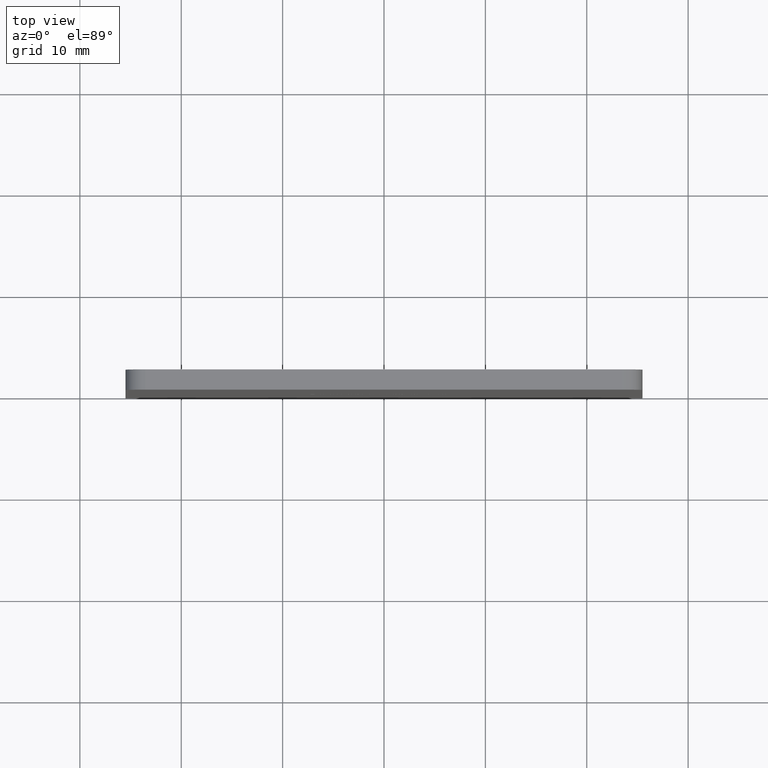
[diagram: clean part render]
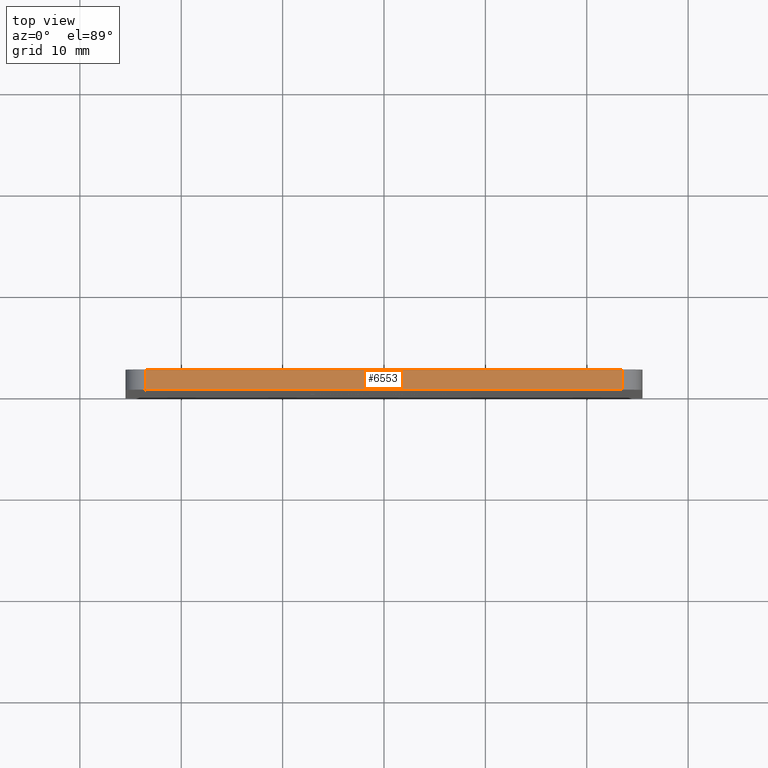
[diagram: same view with one face highlighted and labeled with its STEP entity id]
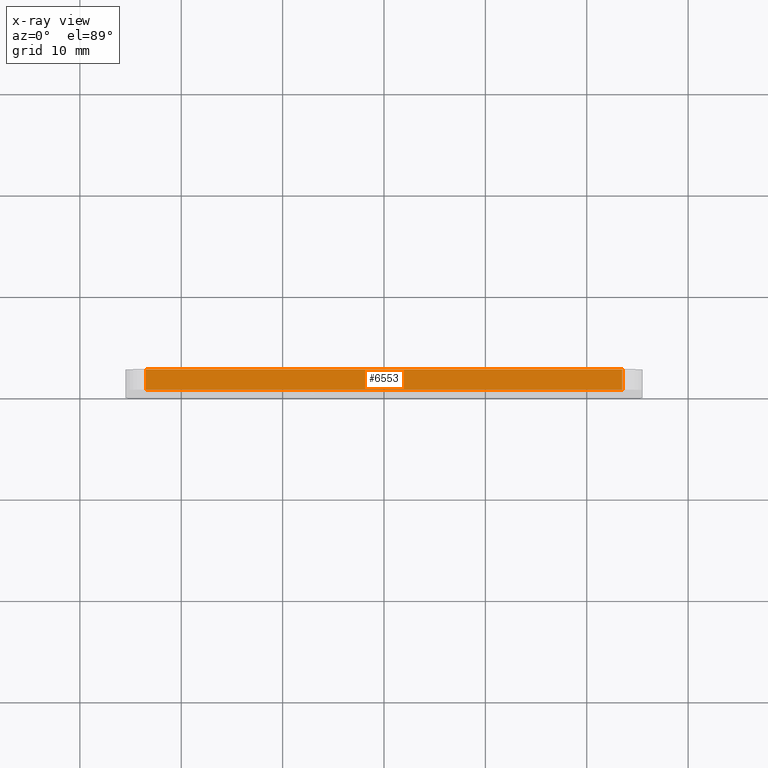
[diagram: x-ray of the same camera — body ghosted, the highlighted face saturated]
A machine part, top view. The second image highlights one B-rep face of the part: STEP entity #6553.
The next image is the same camera in x-ray: the body ghosted, the highlighted face saturated — about 0% of this face is hidden behind the body in this view.
In plain terms, the highlighted planar face has unit normal (0, 0, -1).
Its self-contained STEP definition (entity closure, byte-faithful):
#617 = LINE ( 'NONE', #14291, #14825 ) ;
#1002 = ORIENTED_EDGE ( 'NONE', *, *, #10879, .T. ) ;
#2178 = VECTOR ( 'NONE', #5273, 1000.000000000000000 ) ;
#2312 = CARTESIAN_POINT ( 'NONE',  ( -23.49999999999998600, 2.000000000000000000, 25.50000000000000000 ) ) ;
#2977 = PLANE ( 'NONE',  #11444 ) ;
#3616 = ORIENTED_EDGE ( 'NONE', *, *, #15561, .T. ) ;
#4925 = CARTESIAN_POINT ( 'NONE',  ( 23.50000000000000000, 0.0000000000000000000, 25.50000000000000000 ) ) ;
#5102 = DIRECTION ( 'NONE',  ( 1.000000000000000000, 0.0000000000000000000, 0.0000000000000000000 ) ) ;
#5225 = ORIENTED_EDGE ( 'NONE', *, *, #16599, .F. ) ;
#5273 = DIRECTION ( 'NONE',  ( -0.0000000000000000000, 1.000000000000000000, -0.0000000000000000000 ) ) ;
#6553 = ADVANCED_FACE ( 'NONE', ( #7061 ), #2977, .F. ) ;
#6687 = DIRECTION ( 'NONE',  ( 0.0000000000000000000, -1.000000000000000000, 0.0000000000000000000 ) ) ;
#7061 = FACE_OUTER_BOUND ( 'NONE', #13910, .T. ) ;
#7291 = LINE ( 'NONE', #13149, #15034 ) ;
#7926 = EDGE_CURVE ( 'NONE', #16154, #12478, #9072, .T. ) ;
#8199 = DIRECTION ( 'NONE',  ( -1.000000000000000000, 0.0000000000000000000, -0.0000000000000000000 ) ) ;
#8682 = VERTEX_POINT ( 'NONE', #13128 ) ;
#9072 = LINE ( 'NONE', #13110, #2178 ) ;
#9483 = CARTESIAN_POINT ( 'NONE',  ( 23.50000000000000000, 2.000000000000000000, 25.50000000000000000 ) ) ;
#10879 = EDGE_CURVE ( 'NONE', #8682, #16154, #14286, .T. ) ;
#11444 = AXIS2_PLACEMENT_3D ( 'NONE', #14678, #16005, #8199 ) ;
#12478 = VERTEX_POINT ( 'NONE', #9483 ) ;
#13110 = CARTESIAN_POINT ( 'NONE',  ( 23.50000000000000000, 2.000000000000000000, 25.50000000000000000 ) ) ;
#13128 = CARTESIAN_POINT ( 'NONE',  ( -23.49999999999998600, 0.0000000000000000000, 25.50000000000000000 ) ) ;
#13149 = CARTESIAN_POINT ( 'NONE',  ( -23.49999999999998600, 2.000000000000000000, 25.50000000000000000 ) ) ;
#13878 = VECTOR ( 'NONE', #15989, 1000.000000000000000 ) ;
#13910 = EDGE_LOOP ( 'NONE', ( #5225, #3616, #1002, #16543 ) ) ;
#14286 = LINE ( 'NONE', #15643, #13878 ) ;
#14291 = CARTESIAN_POINT ( 'NONE',  ( -25.49999999999998900, 2.000000000000000000, 25.50000000000000000 ) ) ;
#14678 = CARTESIAN_POINT ( 'NONE',  ( -25.49999999999998900, 2.000000000000000000, 25.50000000000000000 ) ) ;
#14825 = VECTOR ( 'NONE', #5102, 1000.000000000000000 ) ;
#15034 = VECTOR ( 'NONE', #6687, 1000.000000000000000 ) ;
#15561 = EDGE_CURVE ( 'NONE', #16203, #8682, #7291, .T. ) ;
#15643 = CARTESIAN_POINT ( 'NONE',  ( -25.49999999999998900, 0.0000000000000000000, 25.50000000000000000 ) ) ;
#15989 = DIRECTION ( 'NONE',  ( 1.000000000000000000, 0.0000000000000000000, 0.0000000000000000000 ) ) ;
#16005 = DIRECTION ( 'NONE',  ( 0.0000000000000000000, 0.0000000000000000000, -1.000000000000000000 ) ) ;
#16154 = VERTEX_POINT ( 'NONE', #4925 ) ;
#16203 = VERTEX_POINT ( 'NONE', #2312 ) ;
#16543 = ORIENTED_EDGE ( 'NONE', *, *, #7926, .T. ) ;
#16599 = EDGE_CURVE ( 'NONE', #16203, #12478, #617, .T. ) ;